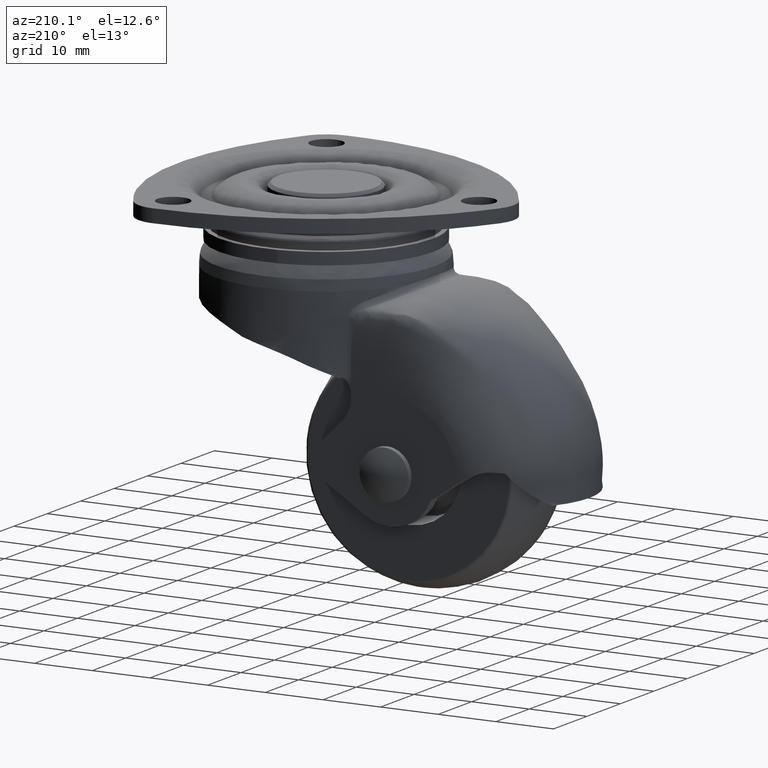
[diagram: clean part render]
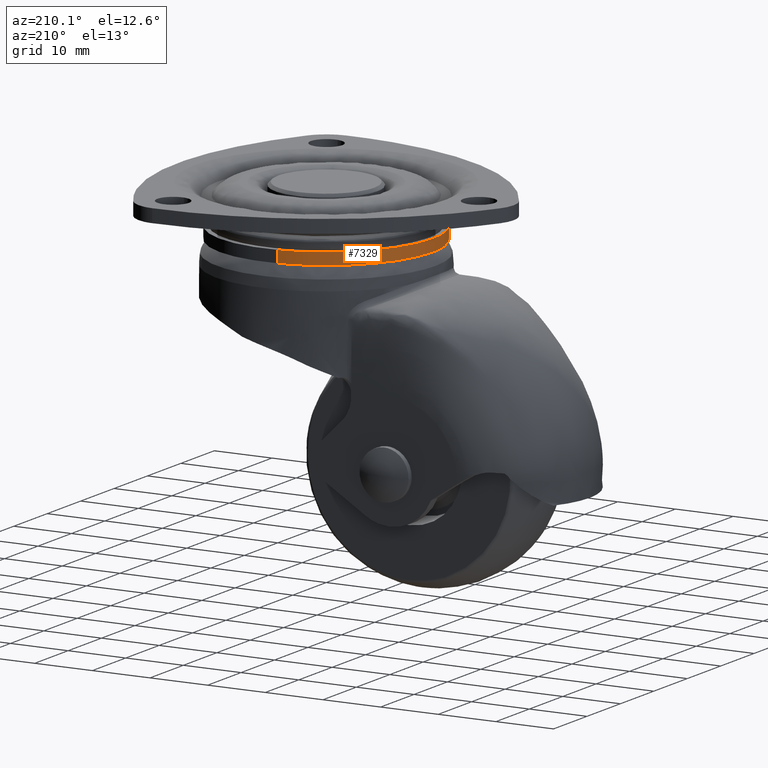
[diagram: same view with one face highlighted and labeled with its STEP entity id]
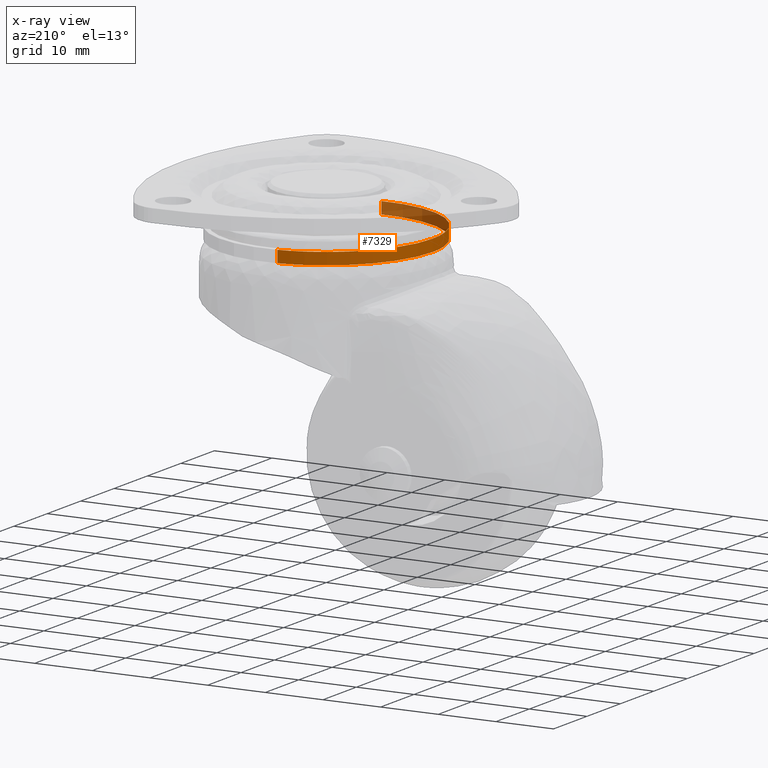
[diagram: x-ray of the same camera — body ghosted, the highlighted face saturated]
A machine part, auxiliary view. The second image highlights one B-rep face of the part: STEP entity #7329.
The next image is the same camera in x-ray: the body ghosted, the highlighted face saturated — about 28% of this face is hidden behind the body in this view.
In plain terms, the highlighted face is a freeform B-spline surface patch.
Its self-contained STEP definition (entity closure, byte-faithful):
#7166=CARTESIAN_POINT('',(-2.183615724292389,18.370678331741271,-8.756338000000817));
#7167=VERTEX_POINT('',#7166);
#7185=CARTESIAN_POINT('',(-2.183615941798902,18.370678305887740,-6.700500000000000));
#7186=VERTEX_POINT('',#7185);
#7187=CARTESIAN_POINT('',(-2.183615941798902,18.370678305887740,-6.700500000000000));
#7188=CARTESIAN_POINT('',(-2.183615724292389,18.370678331741271,-8.756338000000817));
#7189=QUASI_UNIFORM_CURVE('',1,(#7187,#7188),.UNSPECIFIED.,.F.,.U.);
#7190=EDGE_CURVE('',#7186,#7167,#7189,.T.);
#7209=CARTESIAN_POINT('',(1.129380879577222,-18.465494816780609,-6.700500000000000));
#7210=VERTEX_POINT('',#7209);
#7224=CARTESIAN_POINT('',(1.129380666103359,-18.465494829836839,-8.756337999999232));
#7225=VERTEX_POINT('',#7224);
#7226=CARTESIAN_POINT('',(1.129380879577222,-18.465494816780609,-6.700500000000000));
#7227=CARTESIAN_POINT('',(1.129380666103359,-18.465494829836839,-8.756337999999232));
#7228=QUASI_UNIFORM_CURVE('',1,(#7226,#7227),.UNSPECIFIED.,.F.,.U.);
#7229=EDGE_CURVE('',#7210,#7225,#7228,.T.);
#7247=CARTESIAN_POINT('',(1.129397981394854,-18.465493770804532,-6.649104049999998));
#7248=CARTESIAN_POINT('',(-17.336095789409679,-19.594891752199391,-6.649104049999997));
#7249=CARTESIAN_POINT('',(-18.465493770804532,-1.129397981394854,-6.649104049999998));
#7250=CARTESIAN_POINT('',(-19.532044639551760,16.308554580530767,-6.649104049999999));
#7251=CARTESIAN_POINT('',(-2.183633341150032,18.370676237727821,-6.649104049999998));
#7252=CARTESIAN_POINT('',(1.129397981394854,-18.465493770804532,-8.809018848750004));
#7253=CARTESIAN_POINT('',(-17.336095789409679,-19.594891752199391,-8.809018848750004));
#7254=CARTESIAN_POINT('',(-18.465493770804532,-1.129397981394854,-8.809018848750004));
#7255=CARTESIAN_POINT('',(-19.532044639551760,16.308554580530767,-8.809018848750004));
#7256=CARTESIAN_POINT('',(-2.183633341150032,18.370676237727821,-8.809018848750007));
#7264=(BOUNDED_SURFACE()B_SPLINE_SURFACE(2,1,((#7247,#7252),(#7248,#7253),(#7249,#7254),(#7250,#7255),(#7251,#7256)),.UNSPECIFIED.,.F.,.F.,.U.)B_SPLINE_SURFACE_WITH_KNOTS((3,2,3),(2,2),(0.0,30.651803615609019,60.077535086593677),(0.0,2.159914798750008),.UNSPECIFIED.)GEOMETRIC_REPRESENTATION_ITEM()RATIONAL_B_SPLINE_SURFACE(((1.0,1.0),(0.707106781186548,0.707106781186548),(1.0,1.0),(0.718822509939086,0.718822509939086),(0.977505800795127,0.977505800795127)))REPRESENTATION_ITEM('')SURFACE());
#7265=CARTESIAN_POINT('',(-18.500000000000000,0.0,-8.756338000000001));
#7266=VERTEX_POINT('',#7265);
#7267=CARTESIAN_POINT('',(-18.500000000000000,0.0,-8.756338000000001));
#7268=CARTESIAN_POINT('',(-18.500000000000000,16.431244598022531,-8.756338000000001));
#7269=CARTESIAN_POINT('',(-2.183615724292389,18.370678331741271,-8.756338000000817));
#7277=(BOUNDED_CURVE()B_SPLINE_CURVE(2,(#7267,#7268,#7269),.UNSPECIFIED.,.F.,.U.)B_SPLINE_CURVE_WITH_KNOTS((3,3),(0.0,0.229562635584058),.UNSPECIFIED.)CURVE()GEOMETRIC_REPRESENTATION_ITEM()RATIONAL_B_SPLINE_CURVE((1.0,0.731050642977943,0.956027071848855))REPRESENTATION_ITEM(''));
#7278=EDGE_CURVE('',#7266,#7167,#7277,.T.);
#7279=ORIENTED_EDGE('',*,*,#7278,.F.);
#7280=CARTESIAN_POINT('',(1.129380666103359,-18.465494829836832,-8.756337999999232));
#7281=CARTESIAN_POINT('',(0.565217439103575,-18.500000000000004,-8.756338000000003));
#7282=CARTESIAN_POINT('',(0.0,-18.500000000000000,-8.756338000000001));
#7283=CARTESIAN_POINT('',(-18.500000000000000,-18.500000000000000,-8.756338000000001));
#7284=CARTESIAN_POINT('',(-18.500000000000000,0.0,-8.756338000000001));
#7292=(BOUNDED_CURVE()B_SPLINE_CURVE(2,(#7280,#7281,#7282,#7283,#7284),.UNSPECIFIED.,.F.,.U.)B_SPLINE_CURVE_WITH_KNOTS((3,2,3),(0.739333124040963,0.750000000000000,1.0),.UNSPECIFIED.)CURVE()GEOMETRIC_REPRESENTATION_ITEM()RATIONAL_B_SPLINE_CURVE((0.976072388439492,0.987502977462695,1.0,0.707106781186548,1.0))REPRESENTATION_ITEM(''));
#7293=EDGE_CURVE('',#7225,#7266,#7292,.T.);
#7294=ORIENTED_EDGE('',*,*,#7293,.F.);
#7295=ORIENTED_EDGE('',*,*,#7229,.F.);
#7296=CARTESIAN_POINT('',(-18.500000000000000,0.0,-6.700500000000000));
#7297=VERTEX_POINT('',#7296);
#7298=CARTESIAN_POINT('',(1.129380879577221,-18.465494816780613,-6.700500000000000));
#7299=CARTESIAN_POINT('',(0.565217546139767,-18.500000000000000,-6.700500000000000));
#7300=CARTESIAN_POINT('',(0.0,-18.500000000000000,-6.700500000000000));
#7301=CARTESIAN_POINT('',(-18.500000000000000,-18.500000000000000,-6.700499999999999));
#7302=CARTESIAN_POINT('',(-18.500000000000000,0.0,-6.700500000000000));
#7310=(BOUNDED_CURVE()B_SPLINE_CURVE(2,(#7298,#7299,#7300,#7301,#7302),.UNSPECIFIED.,.F.,.U.)B_SPLINE_CURVE_WITH_KNOTS((3,2,3),(0.739333122046202,0.750000000000000,1.0),.UNSPECIFIED.)CURVE()GEOMETRIC_REPRESENTATION_ITEM()RATIONAL_B_SPLINE_CURVE((0.976072384164334,0.987502975125688,1.0,0.707106781186548,1.0))REPRESENTATION_ITEM(''));
#7311=EDGE_CURVE('',#7210,#7297,#7310,.T.);
#7312=ORIENTED_EDGE('',*,*,#7311,.T.);
#7313=CARTESIAN_POINT('',(-18.500000000000000,0.0,-6.700500000000000));
#7314=CARTESIAN_POINT('',(-18.500000000000004,16.431244402109197,-6.700499999999999));
#7315=CARTESIAN_POINT('',(-2.183615941798902,18.370678305887740,-6.700500000000000));
#7323=(BOUNDED_CURVE()B_SPLINE_CURVE(2,(#7313,#7314,#7315),.UNSPECIFIED.,.F.,.U.)B_SPLINE_CURVE_WITH_KNOTS((3,3),(0.0,0.229562633583080),.UNSPECIFIED.)CURVE()GEOMETRIC_REPRESENTATION_ITEM()RATIONAL_B_SPLINE_CURVE((1.0,0.731050645322234,0.956027067926851))REPRESENTATION_ITEM(''));
#7324=EDGE_CURVE('',#7297,#7186,#7323,.T.);
#7325=ORIENTED_EDGE('',*,*,#7324,.T.);
#7326=ORIENTED_EDGE('',*,*,#7190,.T.);
#7327=EDGE_LOOP('',(#7279,#7294,#7295,#7312,#7325,#7326));
#7328=FACE_OUTER_BOUND('',#7327,.T.);
#7329=ADVANCED_FACE('',(#7328),#7264,.T.);